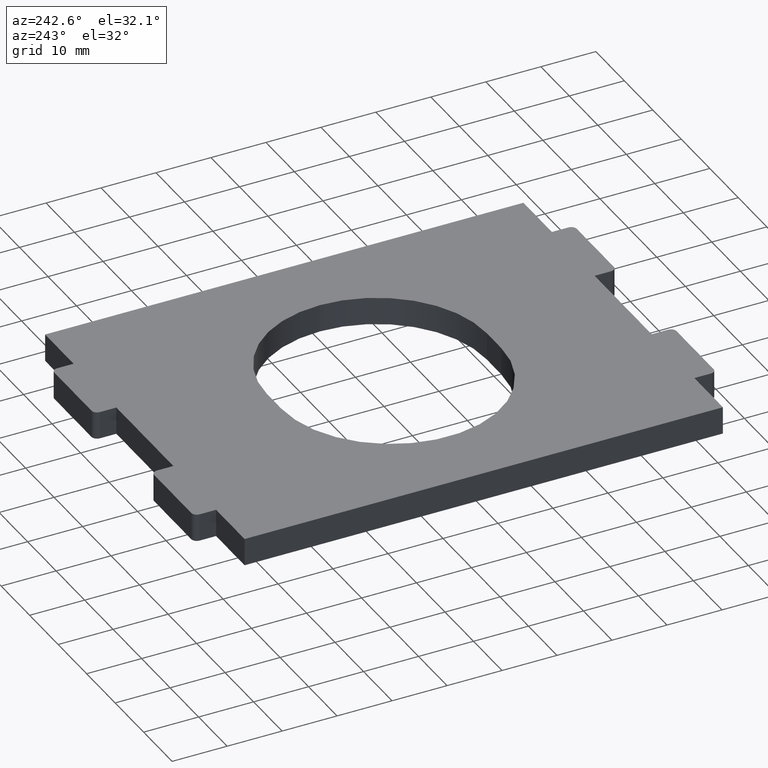
[diagram: clean part render]
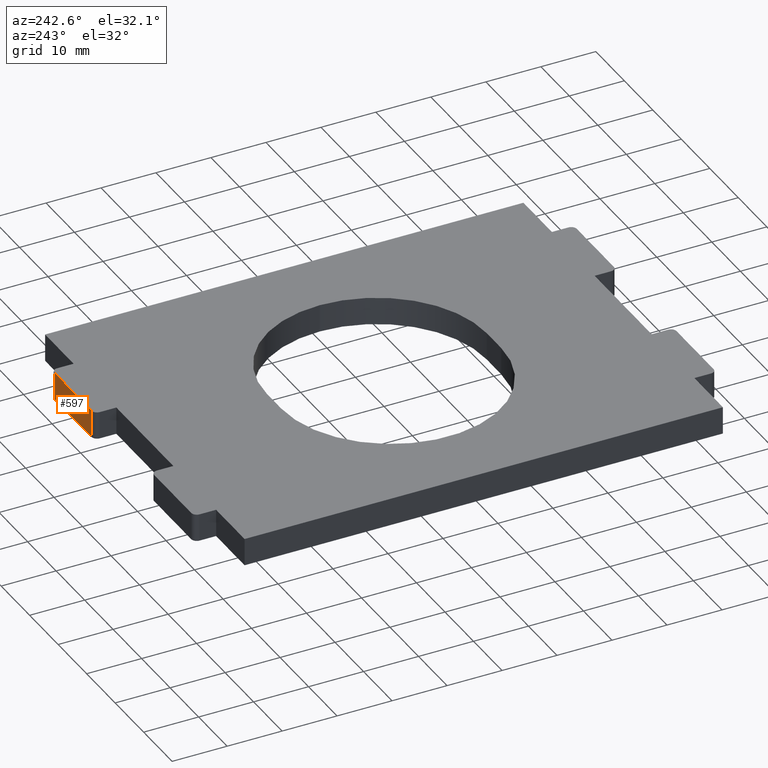
[diagram: same view with one face highlighted and labeled with its STEP entity id]
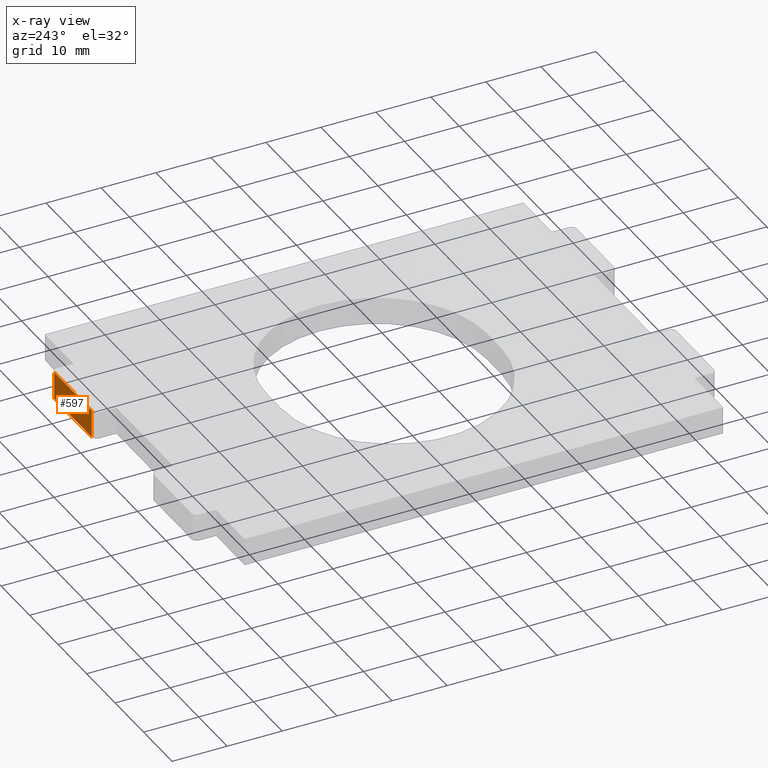
[diagram: x-ray of the same camera — body ghosted, the highlighted face saturated]
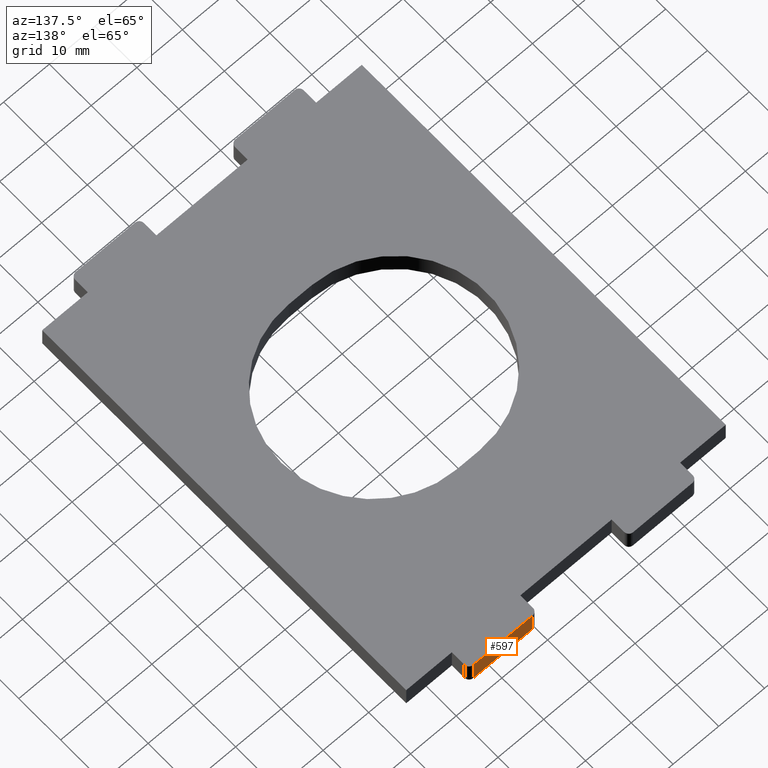
[diagram: same view with one face highlighted and labeled with its STEP entity id]
A machine part, auxiliary view. The second image highlights one B-rep face of the part: STEP entity #597.
The next image is the same camera in x-ray: the body ghosted, the highlighted face saturated — about 0% of this face is hidden behind the body in this view.
A second angle (auxiliary view) of the same face is appended — the face is thin or edge-on in the first view.
In plain terms, the highlighted planar face has unit normal (-0, 1, 0).
Its self-contained STEP definition (entity closure, byte-faithful):
#19 = ORIENTED_EDGE ( 'NONE', *, *, #478, .F. ) ;
#59 = VERTEX_POINT ( 'NONE', #257 ) ;
#92 = EDGE_CURVE ( 'NONE', #202, #130, #715, .T. ) ;
#100 = B_SPLINE_CURVE_WITH_KNOTS ( 'NONE', 1,
 ( #457, #372 ),
 .UNSPECIFIED., .F., .F.,
 ( 2, 2 ),
 ( 0.1500000000000000222, 0.4749999999999999778 ),
 .UNSPECIFIED. ) ;
#130 = VERTEX_POINT ( 'NONE', #733 ) ;
#139 = ORIENTED_EDGE ( 'NONE', *, *, #92, .T. ) ;
#202 = VERTEX_POINT ( 'NONE', #381 ) ;
#257 = CARTESIAN_POINT ( 'NONE',  ( 24.00000000000001421, 47.49999999999998579, -2.500000000000000000 ) ) ;
#274 = ORIENTED_EDGE ( 'NONE', *, *, #590, .T. ) ;
#278 = LINE ( 'NONE', #1170, #926 ) ;
#342 = CARTESIAN_POINT ( 'NONE',  ( 11.00000000000001599, 47.49999999999998579, 2.500000000000000000 ) ) ;
#354 = PLANE ( 'NONE',  #365 ) ;
#357 = CARTESIAN_POINT ( 'NONE',  ( 11.00000000000001599, 47.49999999999998579, -2.500000000000000000 ) ) ;
#365 = AXIS2_PLACEMENT_3D ( 'NONE', #1007, #446, #731 ) ;
#372 = CARTESIAN_POINT ( 'NONE',  ( 11.00000000000001599, 47.49999999999998579, -2.500000000000000000 ) ) ;
#381 = CARTESIAN_POINT ( 'NONE',  ( 11.00000000000001599, 47.49999999999998579, 2.500000000000000000 ) ) ;
#423 = ORIENTED_EDGE ( 'NONE', *, *, #993, .F. ) ;
#433 = DIRECTION ( 'NONE',  ( -0.000000000000000000, -0.000000000000000000, 1.000000000000000000 ) ) ;
#446 = DIRECTION ( 'NONE',  ( -0.000000000000000000, 1.000000000000000000, 0.000000000000000000 ) ) ;
#449 = DIRECTION ( 'NONE',  ( -0.000000000000000000, -0.000000000000000000, -1.000000000000000000 ) ) ;
#457 = CARTESIAN_POINT ( 'NONE',  ( 24.00000000000001421, 47.49999999999998579, -2.500000000000000000 ) ) ;
#478 = EDGE_CURVE ( 'NONE', #59, #130, #811, .T. ) ;
#590 = EDGE_CURVE ( 'NONE', #59, #1060, #100, .T. ) ;
#597 = ADVANCED_FACE ( 'NONE', ( #742 ), #354, .T. ) ;
#715 = B_SPLINE_CURVE_WITH_KNOTS ( 'NONE', 1,
 ( #342, #795 ),
 .UNSPECIFIED., .F., .F.,
 ( 2, 2 ),
 ( 0.6500000000000000222, 0.9749999999999999778 ),
 .UNSPECIFIED. ) ;
#722 = VECTOR ( 'NONE', #433, 1000.000000000000000 ) ;
#731 = DIRECTION ( 'NONE',  ( 0.000000000000000000, 0.000000000000000000, -1.000000000000000000 ) ) ;
#733 = CARTESIAN_POINT ( 'NONE',  ( 24.00000000000001421, 47.49999999999998579, 2.500000000000000000 ) ) ;
#742 = FACE_OUTER_BOUND ( 'NONE', #787, .T. ) ;
#787 = EDGE_LOOP ( 'NONE', ( #139, #19, #274, #423 ) ) ;
#795 = CARTESIAN_POINT ( 'NONE',  ( 24.00000000000001421, 47.49999999999998579, 2.500000000000000000 ) ) ;
#811 = LINE ( 'NONE', #1167, #722 ) ;
#926 = VECTOR ( 'NONE', #449, 1000.000000000000000 ) ;
#993 = EDGE_CURVE ( 'NONE', #202, #1060, #278, .T. ) ;
#1007 = CARTESIAN_POINT ( 'NONE',  ( 25.00000000000001421, 47.49999999999998579, 0.000000000000000000 ) ) ;
#1060 = VERTEX_POINT ( 'NONE', #357 ) ;
#1167 = CARTESIAN_POINT ( 'NONE',  ( 24.00000000000001421, 47.49999999999998579, 0.000000000000000000 ) ) ;
#1170 = CARTESIAN_POINT ( 'NONE',  ( 11.00000000000001599, 47.49999999999998579, 0.000000000000000000 ) ) ;